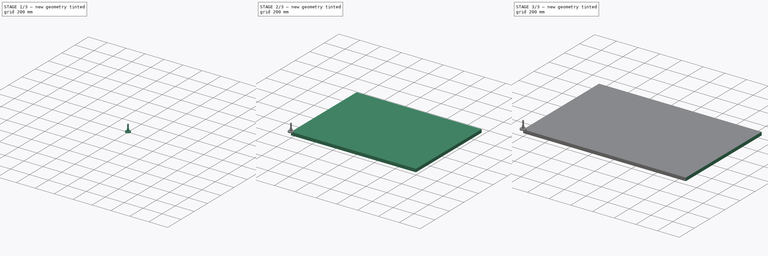
[diagram: build sequence overview — one tinted view per stage of 3, left to right]
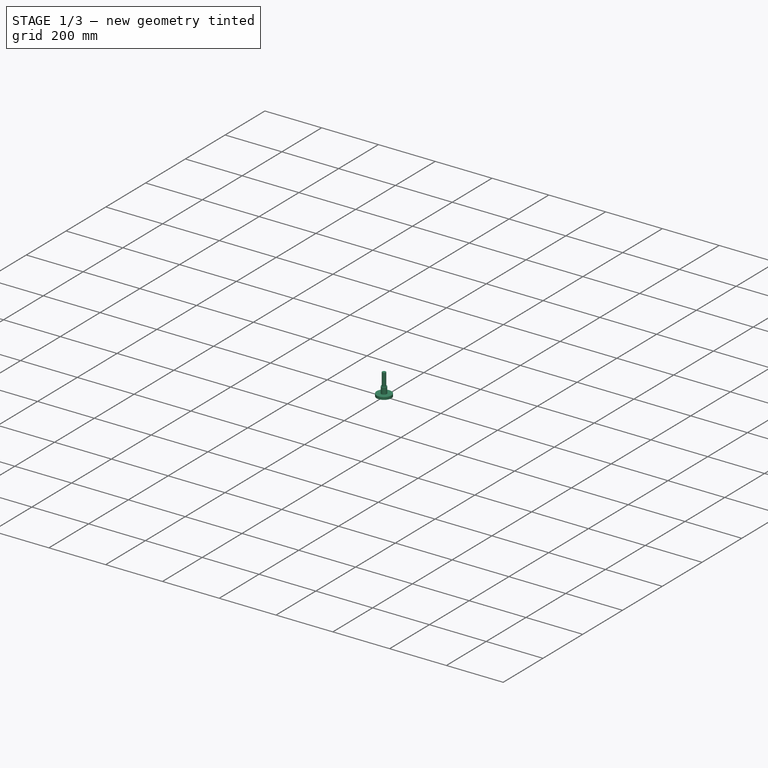
[diagram: stage 1 of 3 — iso view after this stage's code; geometry added in this stage tinted green]
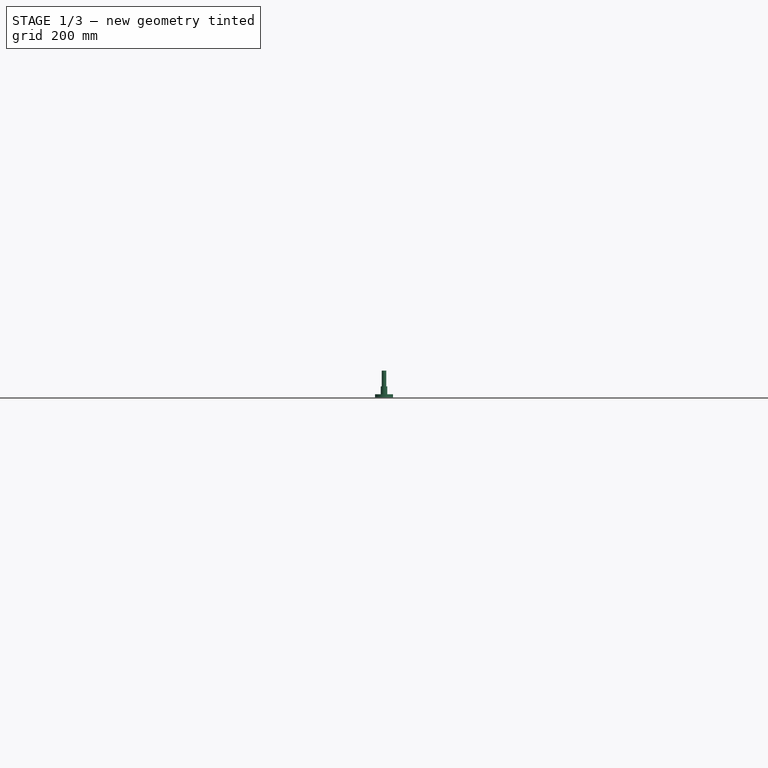
[diagram: stage 1 of 3 — front view after this stage's code; geometry added in this stage tinted green]
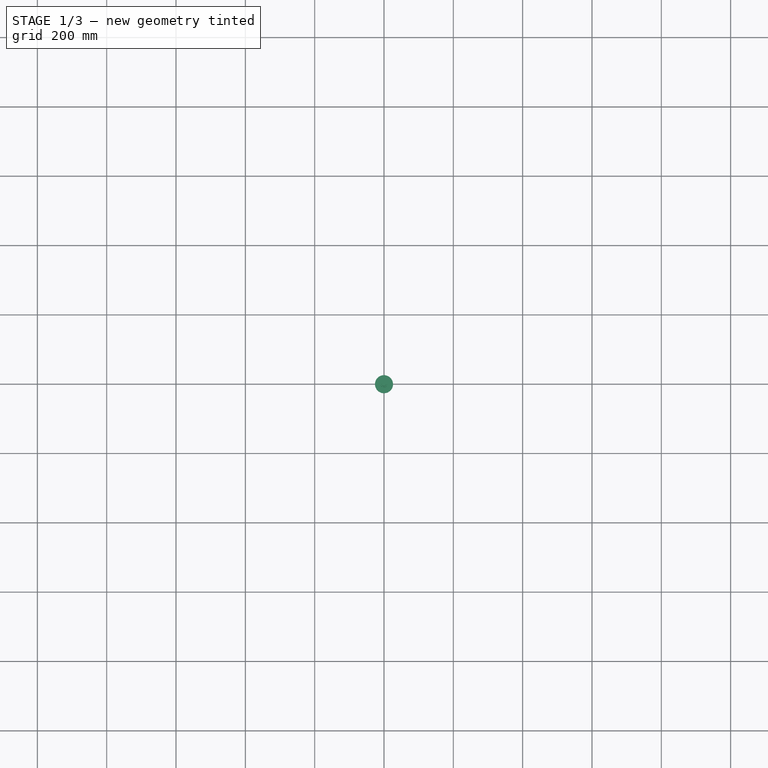
[diagram: stage 1 of 3 — top view after this stage's code; geometry added in this stage tinted green]
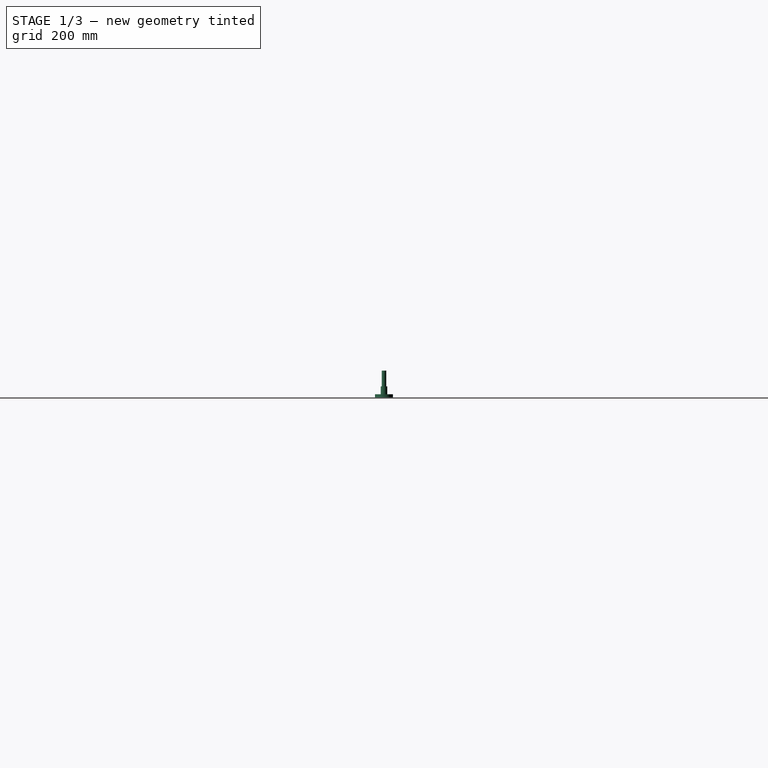
[diagram: stage 1 of 3 — right view after this stage's code; geometry added in this stage tinted green]
FCSTD DOCUMENT  (FreeCAD 0.19R14555 (Git shallow))
Label: PlaneBig52mmBit
License: All rights reserved
LicenseURL: http://en.wikipedia.org/wiki/All_rights_reserved
objects: Part::FeaturePython×4, Path::FeaturePython×4, App::DocumentObjectGroup×2, Sketcher::SketchObject×1, PartDesign::Pad×1, PartDesign::Body×1, App::FeaturePython×1, Path::FeatureCompoundPython×1
note: 9 computed .brp shape members not serialized (recipe doc carries the construction recipe); baked Part::Feature solids carry a one-line shape summary decoded from their .brp

FEATURE [Part::FeaturePython] ToolBit001  label="19mm Endmill"  # Path/CAM toolbit (typed FeaturePython)
  BitPropertyNames = Chipload | CuttingEdgeHeight | Diameter | Flutes | Length | Material | ShankDiameter
  BitShape = /app/freecad/Mod/Path/Tools/Shape/endmill.fcstd
  Chipload = 0
  CuttingEdgeHeight = 31.8
  Diameter = 19
  File = <userpath>/Documents/MensShed/FreeCAD/Bit/19mm_Endmill.fctb
  Flutes = 0
  Length = 77
  Material = 0
  ShankDiameter = 12.7
  ShapeName = endmill
FEATURE [Path::FeaturePython] _9mm_Endmill  label="19mm Endmill001"  # Path/CAM operation (typed FeaturePython)
  HorizFeed = 10
  HorizRapid = 0
  SpindleDir = 0
  SpindleSpeed = 10000
  Tool = -> ToolBit001
  ToolNumber = 1
  VertFeed = 10
  VertRapid = 0
  expr: HorizRapid = SetupSheet.HorizRapid
  expr: VertRapid = SetupSheet.VertRapid
FEATURE [Part::FeaturePython] ToolBit  label="52mm Endmill"  # Path/CAM toolbit (typed FeaturePython)
  BitPropertyNames = Chipload | CuttingEdgeHeight | Diameter | Flutes | Length | Material | ShankDiameter
  BitShape = /app/freecad/Mod/Path/Tools/Shape/endmill.fcstd
  Chipload = 0
  CuttingEdgeHeight = 9
  Diameter = 52
  File = <userpath>/Documents/MensShed/FreeCAD/Bit/52mm_EndMill.fctb
  Flutes = 0
  Length = 40
  Material = 0
  ShankDiameter = 12.7
  ShapeName = endmill
FEATURE [Path::FeaturePython] _2mm_Endmill  label="52mm Endmill001"  # Path/CAM operation (typed FeaturePython)
  HorizFeed = 5
  HorizRapid = 0
  SpindleDir = 0
  SpindleSpeed = 5000
  Tool = -> ToolBit
  ToolNumber = 1
  VertFeed = 5
  VertRapid = 0
  expr: VertRapid = SetupSheet.VertRapid
  expr: HorizRapid = SetupSheet.HorizRapid
FEATURE [App::DocumentObjectGroup] Tools
  Group = -> [_9mm_Endmill,_2mm_Endmill]
FEATURE [Path::FeaturePython] MillFace  # Path/CAM operation (typed FeaturePython)
  Active = true
  AreaParams:
    Tolerance = 1e-07
    FitArcs = True
    Simplify = False
    CleanDistance = 0.0
    Accuracy = 0.01
    Unit = 1.0
    MinArcPoints = 4
    MaxArcPoints = 100
    ClipperScale = 10000000.0
    Fill = 0
    Coplanar = 0
    Reorient = True
    Outline = False
    Explode = False
    OpenMode = 0
    Deflection = 0.01
    SubjectFill = 0
    ClipFill = 0
    Offset = 0.0
    ExtraPass = 0
    Stepover = 0.0
    LastStepover = 0.0
    JoinType = 0
    EndType = 0
    MiterLimit = 2.0
    RoundPrecision = 0.0
    PocketMode = 1
    ToolRadius = 26.0
    PocketExtraOffset = 0.0
    PocketStepover = 26.0
    PocketLastStepover = 0.0
    FromCenter = True
    Angle = 45.0
    AngleShift = 0.0
    Shift = 0.0
    Thicken = False
    SectionCount = -1
    Stepdown = 1.0
    SectionOffset = 0.0
    SectionTolerance = 1e-06
    SectionMode = 2
    Project = False
  Base = -> [Clone]
  BoundaryShape = 0
  ClearEdges = false
  ClearanceHeight = 5
  CoolantMode = None
  CutMode = 0
  CycleTime = 11:01:26
  EnableRotation = 0
  ExcludeRaisedAreas = false
  ExtraOffset = 0
  FinalDepth = -2
  FinishDepth = 0.2
  KeepToolDown = false
  MinTravel = false
  OffsetPattern = 0
  OpFinalDepth = 0
  OpStartDepth = 0.5
  OpStockZMax = 0
  OpStockZMin = -30
  OpToolDiameter = 52
  PathParams = {'orientation': 1, 'feedrate': 5.0, 'feedrate_v': 5.0, 'verbose': True, 'resume_height': 3.0, 'retraction': 5.0, 'return_end': True, 'preamble': False}
  SafeHeight = 3
  StartAt = 0
  StartDepth = 0
  StartPoint = (0,0,0)
  StepDown = 0.5
  StepOver = 50
  ToolController = -> _2mm_Endmill
  UseStartPoint = false
  ZigZagAngle = 45
  expr: FinishDepth = 0.2mm
  expr: ClearanceHeight = OpStockZMax + SetupSheet.ClearanceHeightOffset
  expr: SafeHeight = OpStockZMax + SetupSheet.SafeHeightOffset
  expr: StepDown = 0.5mm
  expr: FinalDepth = -2mm
  expr: StartDepth = 0mm
FEATURE [Path::FeatureCompoundPython] Operations  # Path/CAM operation (typed FeaturePython)
  Group = -> [MillFace]
  UsePlacements = false
FEATURE [Path::FeaturePython] Job  # Path/CAM operation (typed FeaturePython)
  CycleTime = 11:01:26
  Fixtures = G54
  GeometryTolerance = 0.01
  LastPostProcessDate = 2021-12-07 11:00:18.073933
  LastPostProcessOutput = <userpath>/Documents/MensShed/PlaneBig52mmBit.ngc
  Model = -> Model
  Operations = -> Operations
  OrderOutputBy = 0
  PostProcessor = 7
  PostProcessorOutputFile = <userpath>/Documents/MensShed/PlaneBig52mmBit.ngc
  SetupSheet = -> SetupSheet
  SplitOutput = false
  Stock = -> Stock001
  Tools = -> Tools
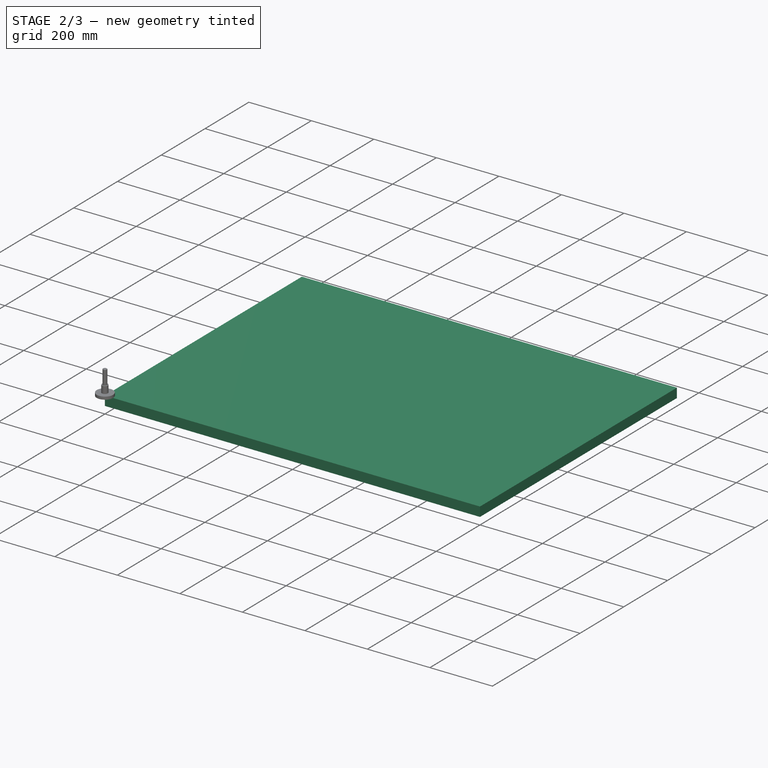
[diagram: stage 2 of 3 — iso view after this stage's code; geometry added in this stage tinted green]
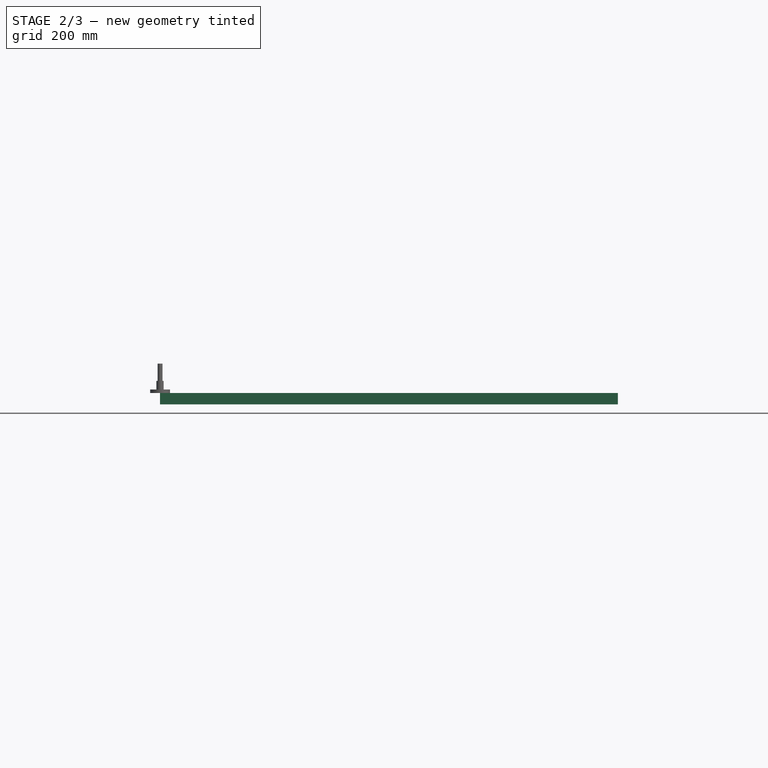
[diagram: stage 2 of 3 — front view after this stage's code; geometry added in this stage tinted green]
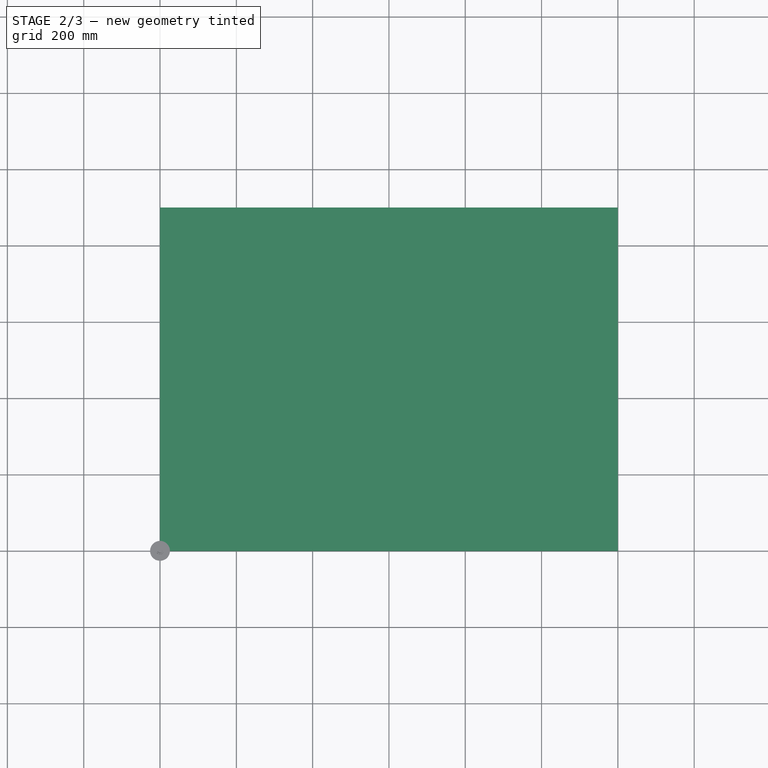
[diagram: stage 2 of 3 — top view after this stage's code; geometry added in this stage tinted green]
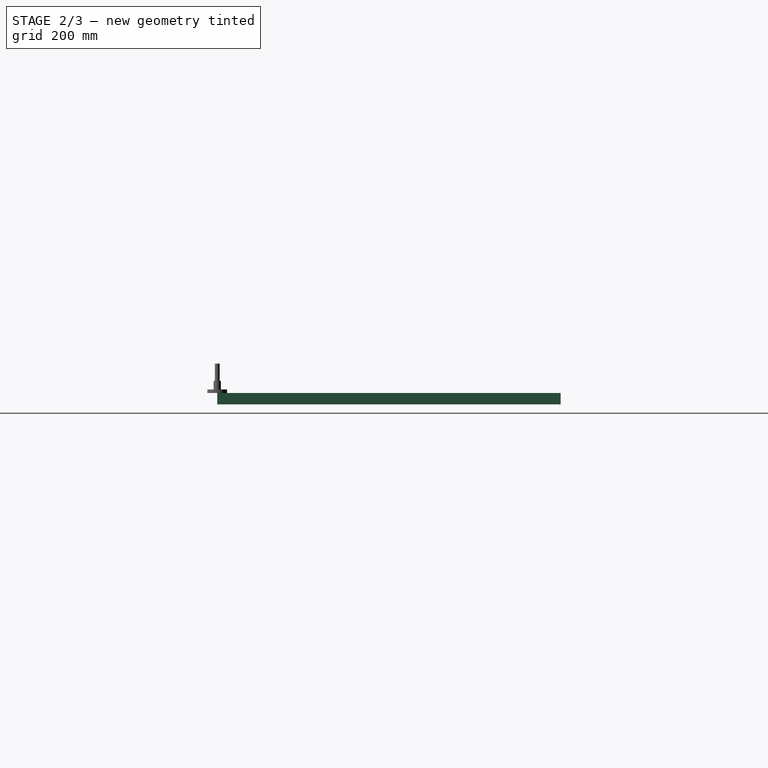
[diagram: stage 2 of 3 — right view after this stage's code; geometry added in this stage tinted green]
FEATURE [Sketcher::SketchObject] Sketch
  FullyConstrained = true
  MapMode = 5
  Support = -> [XY_Plane]
  sketch-geometry (4):
    g0: LineSegment StartX=0 StartY=900 StartZ=0 EndX=1200 EndY=900 EndZ=0
    g1: LineSegment StartX=1200 StartY=900 StartZ=0 EndX=1200 EndY=0 EndZ=0
    g2: LineSegment StartX=1200 StartY=0 StartZ=0 EndX=0 EndY=0 EndZ=0
    g3: LineSegment StartX=0 StartY=0 StartZ=0 EndX=0 EndY=900 EndZ=0
  constraints (11):
    c: Coincident(g0,g1)
    c: Coincident(g1,g2)
    c: Coincident(g2,g3)
    c: Coincident(g3,g0)
    c: Horizontal(g0)
    c: Horizontal(g2)
    c: Vertical(g1)
    c: Vertical(g3)
    c: Coincident(g2,g-1)
    c: DistanceY(g3,g3) = 900
    c: DistanceX(g2,g2) = 1200
FEATURE [PartDesign::Pad] Pad
  Direction = (1,1,1)
  Length = 30
  Length2 = 100
  Profile = -> Sketch
  Reversed = true
  Type = 0
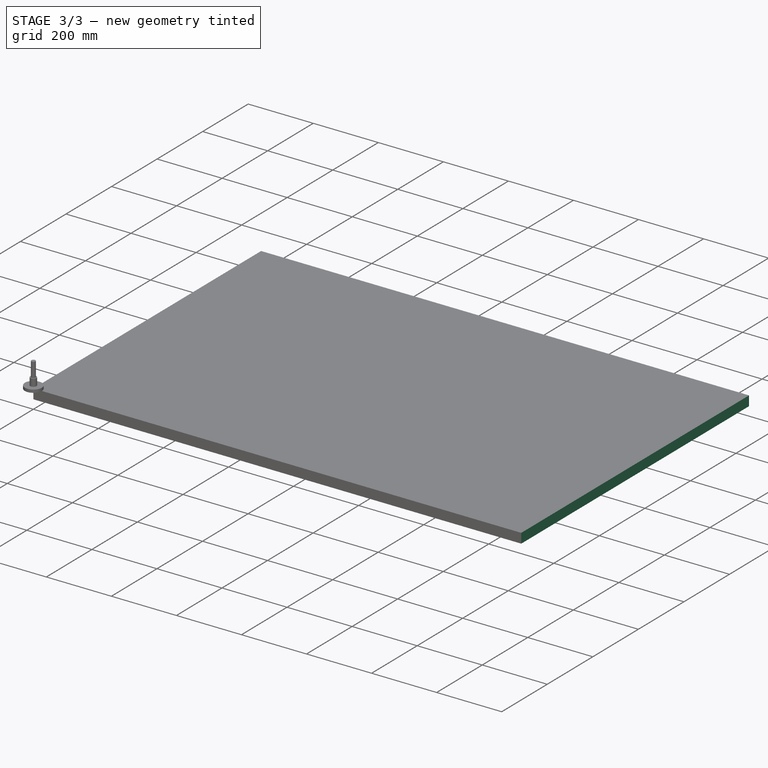
[diagram: stage 3 of 3 — iso view after this stage's code; geometry added in this stage tinted green]
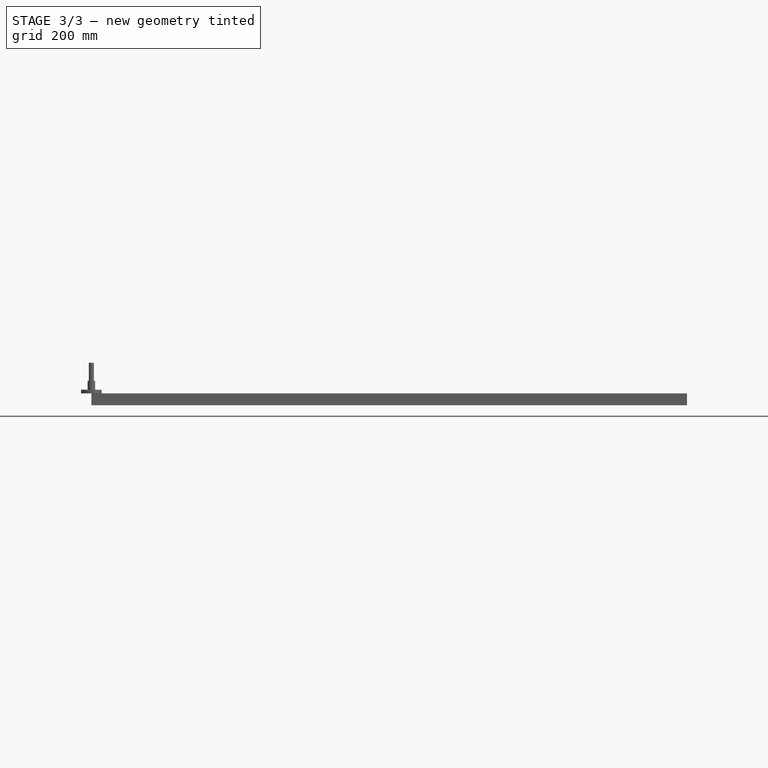
[diagram: stage 3 of 3 — front view after this stage's code; geometry added in this stage tinted green]
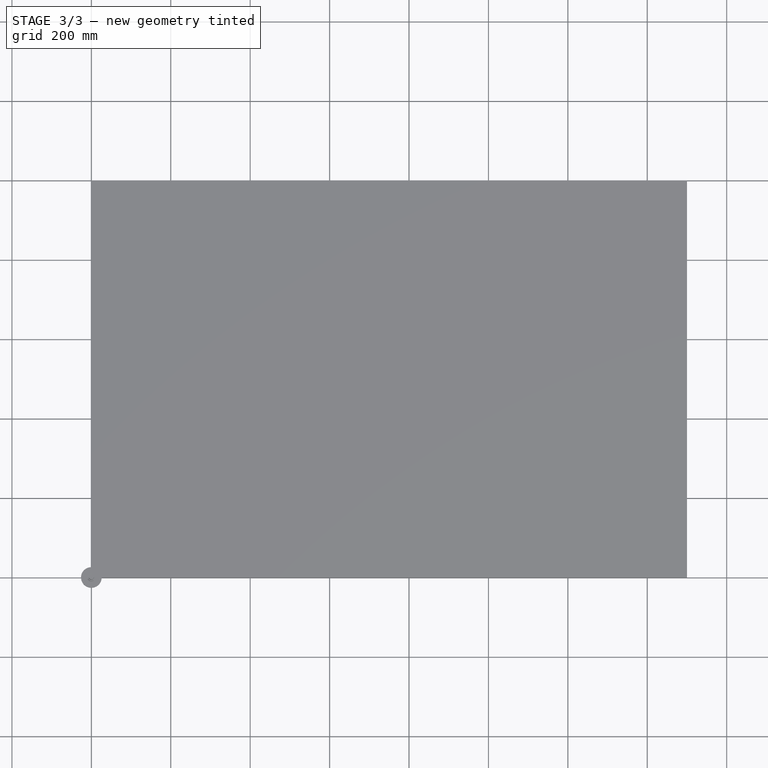
[diagram: stage 3 of 3 — top view after this stage's code; geometry added in this stage tinted green]
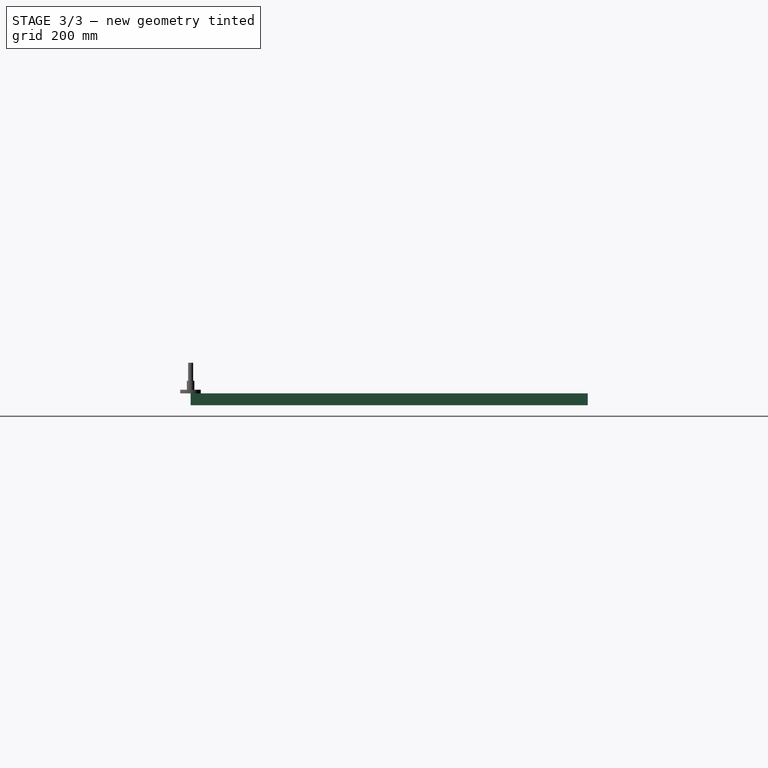
[diagram: stage 3 of 3 — right view after this stage's code; geometry added in this stage tinted green]
FEATURE [PartDesign::Body] Body
  Group = -> [Sketch,Pad]
  Origin = -> Origin
  Tip = -> Pad
FEATURE [App::FeaturePython] SetupSheet  # Path/CAM operation (typed FeaturePython)
  ClearanceHeightExpression = OpStockZMax+SetupSheet.ClearanceHeightOffset
  ClearanceHeightOffset = 5
  CoolantMode = 0
  CoolantModes = None | Flood | Mist
  FinalDepthExpression = OpFinalDepth
  HorizRapid = 0
  SafeHeightExpression = OpStockZMax+SetupSheet.SafeHeightOffset
  SafeHeightOffset = 3
  StartDepthExpression = OpStartDepth
  StepDownExpression = OpToolDiameter
  VertRapid = 0
FEATURE [Part::FeaturePython] Clone  label="Model-Body"  # Draft clone (typed FeaturePython)
  AttacherType = Attacher::AttachEngine3D
  Fuse = false
  Objects = -> [Body]
  PathResource = Model
  Scale = (1,1,1)
FEATURE [App::DocumentObjectGroup] Model
  Group = -> [Clone]
FEATURE [Part::FeaturePython] Stock001  # WARN: FeaturePython — macro-defined, semantics opaque (R4)
  Height = 30
  Length = 1500
  Placement = pos=(0,0,-30) rot=(0,0,1;0rad)
  StockType = CreateBox
  Width = 1000
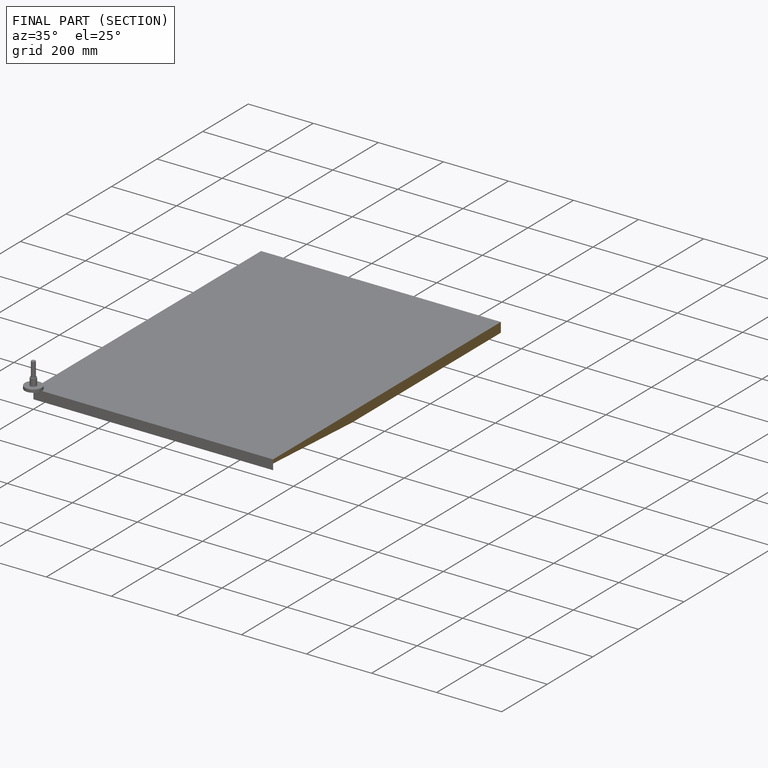
[diagram: finished part — half-section view (interior)]
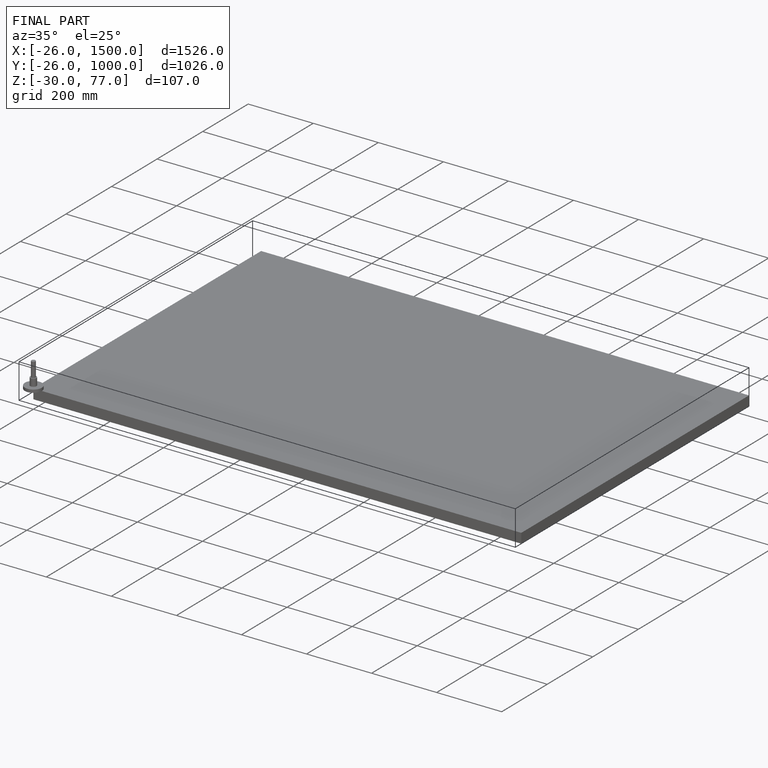
[diagram: finished part — iso view with bounding-box wireframe]
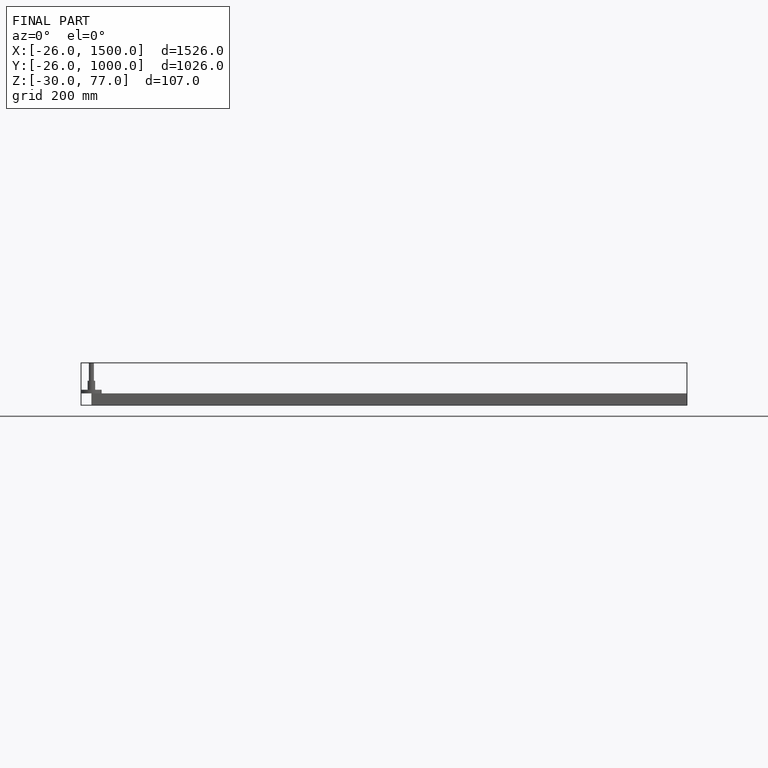
[diagram: finished part — front view with bounding-box wireframe]
